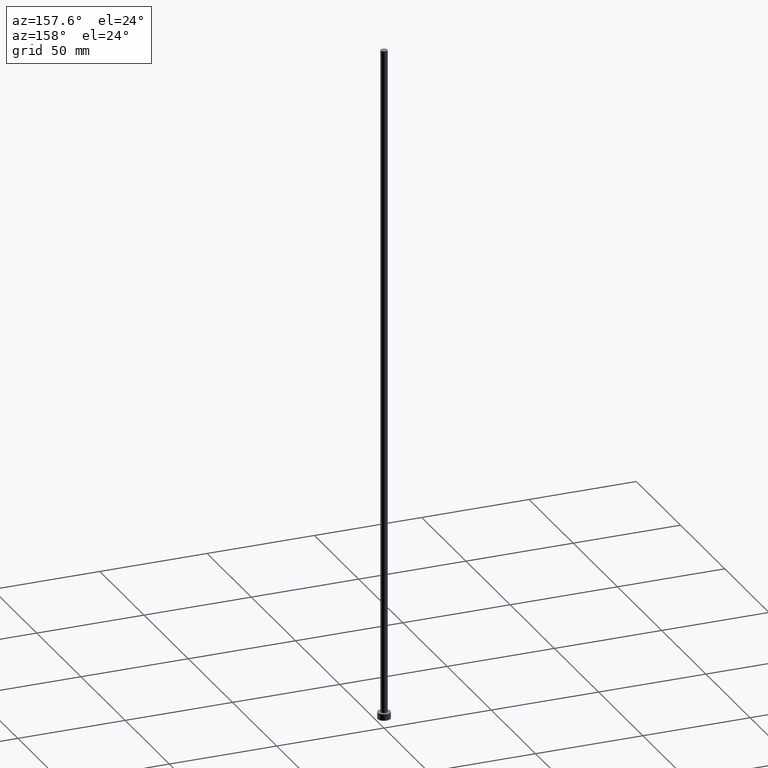
[diagram: clean part render]
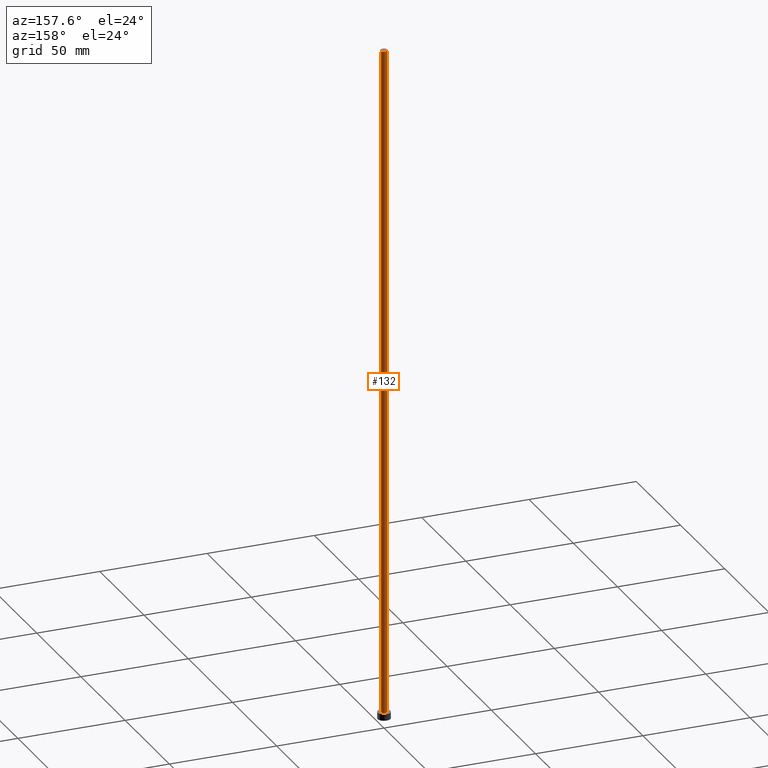
[diagram: same view with one face highlighted and labeled with its STEP entity id]
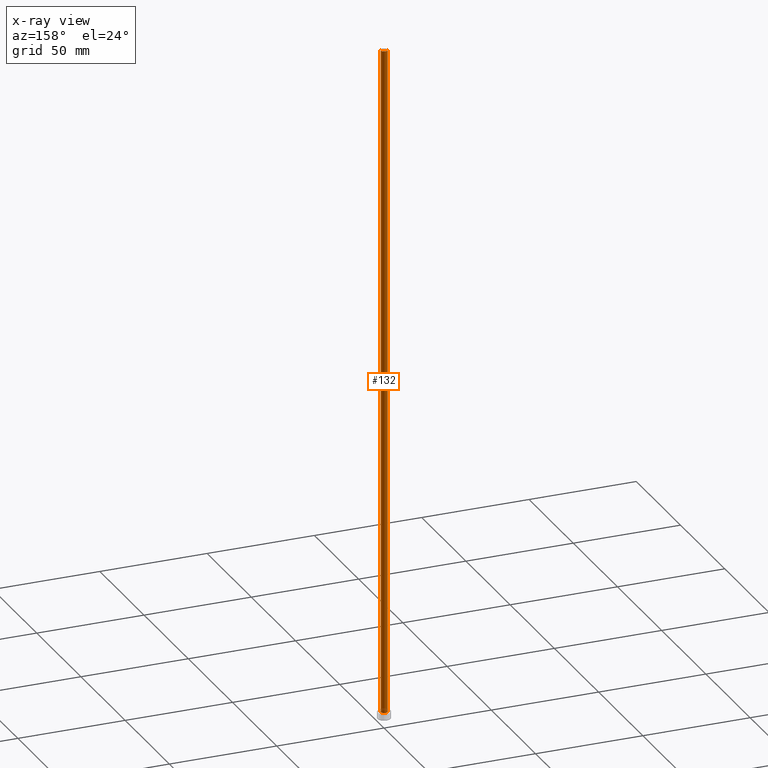
[diagram: x-ray of the same camera — body ghosted, the highlighted face saturated]
A machine part, auxiliary view. The second image highlights one B-rep face of the part: STEP entity #132.
The next image is the same camera in x-ray: the body ghosted, the highlighted face saturated — about 0% of this face is hidden behind the body in this view.
In plain terms, the highlighted cylindrical surface (edge-blend (fillet) strip) has radius 1.6 mm, axis along (-0, -0, -1).
Its self-contained STEP definition (entity closure, byte-faithful):
#4 = EDGE_CURVE ( 'NONE', #40, #177, #83, .T. ) ;
#13 = CARTESIAN_POINT ( 'NONE',  ( 1.600000000000000089, 1.959434878635765230E-16, 3.000000000000000000 ) ) ;
#17 = DIRECTION ( 'NONE',  ( 0.000000000000000000, 0.000000000000000000, 1.000000000000000000 ) ) ;
#25 = CARTESIAN_POINT ( 'NONE',  ( 0.000000000000000000, 0.000000000000000000, 315.0000000000000000 ) ) ;
#29 = CARTESIAN_POINT ( 'NONE',  ( -1.600000000000000089, 0.000000000000000000, 315.0000000000000000 ) ) ;
#33 = CYLINDRICAL_SURFACE ( 'NONE', #222, 1.600000000000000089 ) ;
#40 = VERTEX_POINT ( 'NONE', #188 ) ;
#54 = EDGE_CURVE ( 'NONE', #78, #238, #89, .T. ) ;
#68 = DIRECTION ( 'NONE',  ( -1.000000000000000000, 0.000000000000000000, 0.000000000000000000 ) ) ;
#71 = DIRECTION ( 'NONE',  ( 0.000000000000000000, 0.000000000000000000, 1.000000000000000000 ) ) ;
#74 = LINE ( 'NONE', #97, #181 ) ;
#76 = VECTOR ( 'NONE', #86, 1000.000000000000000 ) ;
#78 = VERTEX_POINT ( 'NONE', #13 ) ;
#83 = CIRCLE ( 'NONE', #230, 1.600000000000000089 ) ;
#86 = DIRECTION ( 'NONE',  ( -0.000000000000000000, -0.000000000000000000, -1.000000000000000000 ) ) ;
#89 = CIRCLE ( 'NONE', #120, 1.600000000000000089 ) ;
#97 = CARTESIAN_POINT ( 'NONE',  ( 1.600000000000000089, 1.959434878635765230E-16, 315.0000000000000000 ) ) ;
#99 = ORIENTED_EDGE ( 'NONE', *, *, #54, .T. ) ;
#103 = ORIENTED_EDGE ( 'NONE', *, *, #4, .F. ) ;
#116 = EDGE_CURVE ( 'NONE', #177, #238, #131, .T. ) ;
#120 = AXIS2_PLACEMENT_3D ( 'NONE', #224, #71, #194 ) ;
#131 = LINE ( 'NONE', #151, #76 ) ;
#132 = ADVANCED_FACE ( 'NONE', ( #210 ), #33, .T. ) ;
#142 = EDGE_LOOP ( 'NONE', ( #103, #198, #99, #216 ) ) ;
#151 = CARTESIAN_POINT ( 'NONE',  ( -1.600000000000000089, 0.000000000000000000, 315.0000000000000000 ) ) ;
#153 = CARTESIAN_POINT ( 'NONE',  ( -1.600000000000000089, 0.000000000000000000, 3.000000000000000000 ) ) ;
#177 = VERTEX_POINT ( 'NONE', #29 ) ;
#181 = VECTOR ( 'NONE', #228, 1000.000000000000000 ) ;
#188 = CARTESIAN_POINT ( 'NONE',  ( 1.600000000000000089, 1.959434878635765230E-16, 315.0000000000000000 ) ) ;
#194 = DIRECTION ( 'NONE',  ( 1.000000000000000000, 0.000000000000000000, 0.000000000000000000 ) ) ;
#198 = ORIENTED_EDGE ( 'NONE', *, *, #232, .T. ) ;
#210 = FACE_OUTER_BOUND ( 'NONE', #142, .T. ) ;
#216 = ORIENTED_EDGE ( 'NONE', *, *, #116, .F. ) ;
#222 = AXIS2_PLACEMENT_3D ( 'NONE', #242, #248, #68 ) ;
#224 = CARTESIAN_POINT ( 'NONE',  ( 0.000000000000000000, 0.000000000000000000, 3.000000000000000000 ) ) ;
#228 = DIRECTION ( 'NONE',  ( -0.000000000000000000, -0.000000000000000000, -1.000000000000000000 ) ) ;
#230 = AXIS2_PLACEMENT_3D ( 'NONE', #25, #17, #253 ) ;
#232 = EDGE_CURVE ( 'NONE', #40, #78, #74, .T. ) ;
#238 = VERTEX_POINT ( 'NONE', #153 ) ;
#242 = CARTESIAN_POINT ( 'NONE',  ( 0.000000000000000000, 0.000000000000000000, 315.0000000000000000 ) ) ;
#248 = DIRECTION ( 'NONE',  ( -0.000000000000000000, -0.000000000000000000, -1.000000000000000000 ) ) ;
#253 = DIRECTION ( 'NONE',  ( 1.000000000000000000, 0.000000000000000000, 0.000000000000000000 ) ) ;